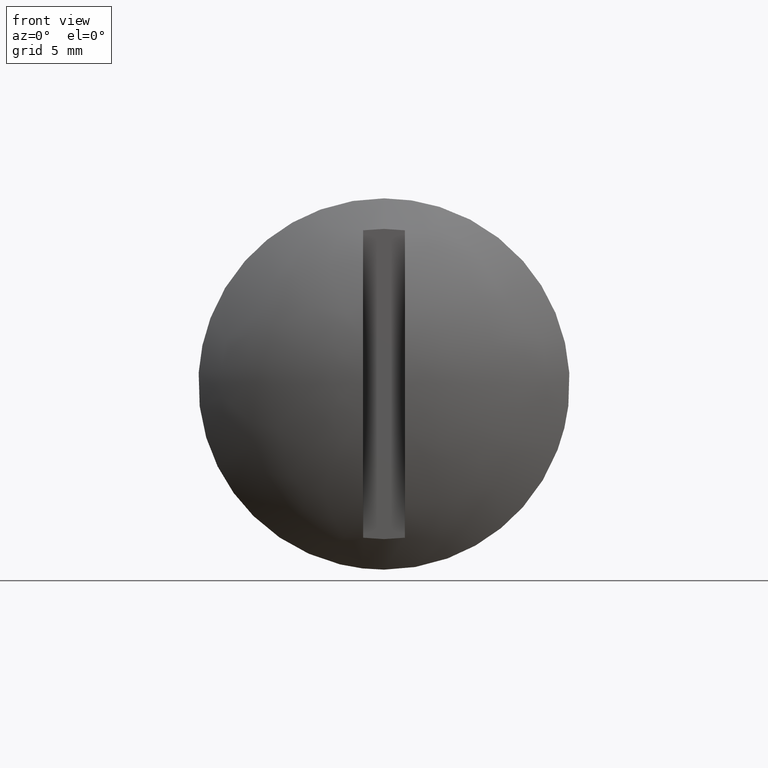
[diagram: clean part render]
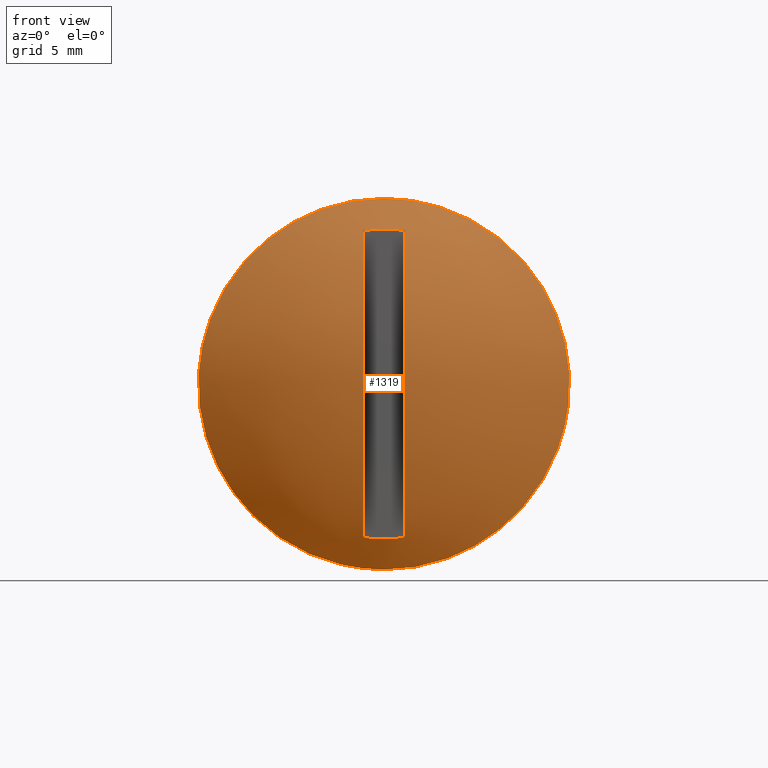
[diagram: same view with one face highlighted and labeled with its STEP entity id]
A machine part, front view. The second image highlights one B-rep face of the part: STEP entity #1319.
In plain terms, the highlighted face is a freeform B-spline surface patch.
Its self-contained STEP definition (entity closure, byte-faithful):
#314=CARTESIAN_POINT('',(-7.985078490479376,-4.600003109090910,0.488386630530298));
#315=VERTEX_POINT('',#314);
#321=CARTESIAN_POINT('',(0.0,-4.600003109090910,8.0));
#322=VERTEX_POINT('',#321);
#323=CARTESIAN_POINT('',(0.0,-4.600003109090910,8.0));
#324=CARTESIAN_POINT('',(-7.525650126971833,-4.600003109090910,8.0));
#325=CARTESIAN_POINT('',(-7.985078490479377,-4.600003109090910,0.488386630530298));
#333=(BOUNDED_CURVE()B_SPLINE_CURVE(2,(#323,#324,#325),.UNSPECIFIED.,.F.,.U.)B_SPLINE_CURVE_WITH_KNOTS((3,3),(0.500000000000000,0.739332998668725),.UNSPECIFIED.)CURVE()GEOMETRIC_REPRESENTATION_ITEM()RATIONAL_B_SPLINE_CURVE((1.0,0.719603950606565,0.976072119742688))REPRESENTATION_ITEM(''));
#334=EDGE_CURVE('',#322,#315,#333,.T.);
#336=CARTESIAN_POINT('',(7.944076343426870,-4.600003109090911,-0.944272762396703));
#337=VERTEX_POINT('',#336);
#338=CARTESIAN_POINT('',(7.944076343426870,-4.600003109090911,-0.944272762396703));
#339=CARTESIAN_POINT('',(8.0,-4.600003109090910,-0.473792393893546));
#340=CARTESIAN_POINT('',(8.0,-4.600003109090910,-7.715016E-016));
#341=CARTESIAN_POINT('',(8.0,-4.600003109090911,8.0));
#342=CARTESIAN_POINT('',(0.0,-4.600003109090910,8.0));
#350=(BOUNDED_CURVE()B_SPLINE_CURVE(2,(#338,#339,#340,#341,#342),.UNSPECIFIED.,.F.,.U.)B_SPLINE_CURVE_WITH_KNOTS((3,2,3),(0.229562497233257,0.250000000000000,0.500000000000000),.UNSPECIFIED.)CURVE()GEOMETRIC_REPRESENTATION_ITEM()RATIONAL_B_SPLINE_CURVE((0.956026800675382,0.976055976120559,1.0,0.707106781186548,1.0))REPRESENTATION_ITEM(''));
#351=EDGE_CURVE('',#337,#322,#350,.T.);
#395=CARTESIAN_POINT('',(0.0,-4.600003109090910,-8.0));
#396=VERTEX_POINT('',#395);
#397=CARTESIAN_POINT('',(0.0,-4.600003109090910,-8.0));
#398=CARTESIAN_POINT('',(7.105397211789190,-4.600003109090910,-8.0));
#399=CARTESIAN_POINT('',(7.944076343426870,-4.600003109090911,-0.944272762396703));
#407=(BOUNDED_CURVE()B_SPLINE_CURVE(2,(#397,#398,#399),.UNSPECIFIED.,.F.,.U.)B_SPLINE_CURVE_WITH_KNOTS((3,3),(0.0,0.229562497233257),.UNSPECIFIED.)CURVE()GEOMETRIC_REPRESENTATION_ITEM()RATIONAL_B_SPLINE_CURVE((1.0,0.731050805065989,0.956026800675382))REPRESENTATION_ITEM(''));
#408=EDGE_CURVE('',#396,#337,#407,.T.);
#410=CARTESIAN_POINT('',(-7.985078490479377,-4.600003109090910,0.488386630530298));
#411=CARTESIAN_POINT('',(-8.0,-4.600003109090910,0.244421261151109));
#412=CARTESIAN_POINT('',(-8.0,-4.600003109090910,-7.715016E-016));
#413=CARTESIAN_POINT('',(-8.0,-4.600003109090911,-8.0));
#414=CARTESIAN_POINT('',(0.0,-4.600003109090910,-8.0));
#422=(BOUNDED_CURVE()B_SPLINE_CURVE(2,(#410,#411,#412,#413,#414),.UNSPECIFIED.,.F.,.U.)B_SPLINE_CURVE_WITH_KNOTS((3,2,3),(0.739332998668725,0.750000000000000,1.0),.UNSPECIFIED.)CURVE()GEOMETRIC_REPRESENTATION_ITEM()RATIONAL_B_SPLINE_CURVE((0.976072119742688,0.987502830579982,1.0,0.707106781186548,1.0))REPRESENTATION_ITEM(''));
#423=EDGE_CURVE('',#315,#396,#422,.T.);
#1146=CARTESIAN_POINT('',(-0.899994000000000,-5.600000000000000,-6.622442132624241));
#1147=VERTEX_POINT('',#1146);
#1148=CARTESIAN_POINT('',(0.900001000000000,-5.600000000000000,-6.622441181316130));
#1149=VERTEX_POINT('',#1148);
#1150=CARTESIAN_POINT('',(-0.899994000000001,-5.600000000000000,-6.622442132624245));
#1151=CARTESIAN_POINT('',(0.000003564641939,-5.600000000000001,-6.744752360780423));
#1152=CARTESIAN_POINT('',(0.900000999999998,-5.600000000000000,-6.622441181316130));
#1160=(BOUNDED_CURVE()B_SPLINE_CURVE(2,(#1150,#1151,#1152),.UNSPECIFIED.,.F.,.U.)CURVE()GEOMETRIC_REPRESENTATION_ITEM()QUASI_UNIFORM_CURVE()RATIONAL_B_SPLINE_CURVE((1.0,0.990891415693262,1.0))REPRESENTATION_ITEM(''));
#1161=EDGE_CURVE('',#1147,#1149,#1160,.T.);
#1163=CARTESIAN_POINT('',(0.900001000000000,-5.600000000000000,6.622441181316130));
#1164=VERTEX_POINT('',#1163);
#1170=CARTESIAN_POINT('',(-0.899994000000000,-5.600000000000000,6.622442132624251));
#1171=VERTEX_POINT('',#1170);
#1172=CARTESIAN_POINT('',(0.900001000000000,-5.600000000000000,6.622441181316132));
#1173=CARTESIAN_POINT('',(0.000003564641941,-5.600000000000000,6.744752360780427));
#1174=CARTESIAN_POINT('',(-0.899993999999998,-5.600000000000000,6.622442132624249));
#1182=(BOUNDED_CURVE()B_SPLINE_CURVE(2,(#1172,#1173,#1174),.UNSPECIFIED.,.F.,.U.)CURVE()GEOMETRIC_REPRESENTATION_ITEM()QUASI_UNIFORM_CURVE()RATIONAL_B_SPLINE_CURVE((1.0,0.990891415693262,1.0))REPRESENTATION_ITEM(''));
#1183=EDGE_CURVE('',#1164,#1171,#1182,.T.);
#1198=CARTESIAN_POINT('',(-0.899994000000000,-5.600000000000006,6.622442132624258));
#1199=CARTESIAN_POINT('',(-0.899994000000000,-9.913778816724628,9.465713E-015));
#1200=CARTESIAN_POINT('',(-0.899994000000000,-5.600000000000015,-6.622442132624243));
#1208=(BOUNDED_CURVE()B_SPLINE_CURVE(2,(#1198,#1199,#1200),.UNSPECIFIED.,.F.,.U.)CURVE()GEOMETRIC_REPRESENTATION_ITEM()QUASI_UNIFORM_CURVE()RATIONAL_B_SPLINE_CURVE((1.0,0.837911814314276,1.0))REPRESENTATION_ITEM(''));
#1209=EDGE_CURVE('',#1171,#1147,#1208,.T.);
#1220=CARTESIAN_POINT('',(0.900001000000000,-5.600000000000009,-6.622441181316141));
#1221=CARTESIAN_POINT('',(0.900001000000000,-9.913777577383495,-1.734678E-016));
#1222=CARTESIAN_POINT('',(0.900001000000000,-5.600000000000013,6.622441181316141));
#1230=(BOUNDED_CURVE()B_SPLINE_CURVE(2,(#1220,#1221,#1222),.UNSPECIFIED.,.F.,.U.)CURVE()GEOMETRIC_REPRESENTATION_ITEM()QUASI_UNIFORM_CURVE()RATIONAL_B_SPLINE_CURVE((1.0,0.837911850171558,1.0))REPRESENTATION_ITEM(''));
#1231=EDGE_CURVE('',#1149,#1164,#1230,.T.);
#1283=CARTESIAN_POINT('',(-7.488466709197089,-1.422579893843460,-7.488632038910354));
#1284=CARTESIAN_POINT('',(-4.288585903265346,-4.062163336550862,-8.577361172579918));
#1285=CARTESIAN_POINT('',(4.288609392507705,-4.062163336550856,-8.577361172579918));
#1286=CARTESIAN_POINT('',(7.488497312371514,-1.422554649175327,-7.488621626431925));
#1287=CARTESIAN_POINT('',(-8.577226869173131,-4.062296836834491,-4.288708118219010));
#1288=CARTESIAN_POINT('',(-5.018182856486771,-7.600003000000000,-5.018293647489132));
#1289=CARTESIAN_POINT('',(5.018210341843483,-7.600002999999994,-5.018293647489132));
#1290=CARTESIAN_POINT('',(8.577260187830277,-4.062263717807743,-4.288701288041056));
#1291=CARTESIAN_POINT('',(-8.577226869173131,-4.062296836834491,4.288708393754412));
#1292=CARTESIAN_POINT('',(-5.018182856486771,-7.600003000000000,5.018293969898006));
#1293=CARTESIAN_POINT('',(5.018210341843483,-7.600002999999994,5.018293969898006));
#1294=CARTESIAN_POINT('',(8.577260187830277,-4.062263717807743,4.288701563576019));
#1295=CARTESIAN_POINT('',(-7.488466587056744,-1.422579597712184,7.488632397887304));
#1296=CARTESIAN_POINT('',(-4.288585823147074,-4.062162948054731,8.577361563407093));
#1297=CARTESIAN_POINT('',(4.288609312388994,-4.062162948054728,8.577361563407093));
#1298=CARTESIAN_POINT('',(7.488497190230841,-1.422554353044874,7.488621985408546));
#1306=(BOUNDED_SURFACE()B_SPLINE_SURFACE(2,2,((#1283,#1287,#1291,#1295),(#1284,#1288,#1292,#1296),(#1285,#1289,#1293,#1297),(#1286,#1290,#1294,#1298)),.UNSPECIFIED.,.F.,.F.,.U.)B_SPLINE_SURFACE_WITH_KNOTS((3,1,3),(3,1,3),(0.0,9.249588578246129,18.499227817906672),(0.0,9.249792789854036,18.499586173976859),.UNSPECIFIED.)GEOMETRIC_REPRESENTATION_ITEM()RATIONAL_B_SPLINE_SURFACE(((1.340243083493611,1.170117785859743,1.170117785859743,1.340243105353594),(1.170125297633868,1.0,1.0,1.170125319493852),(1.170125297633868,1.0,1.0,1.170125319493852),(1.340244947021092,1.170119649387223,1.170119649387223,1.340244968881075)))REPRESENTATION_ITEM('')SURFACE());
#1307=ORIENTED_EDGE('',*,*,#408,.T.);
#1308=ORIENTED_EDGE('',*,*,#351,.T.);
#1309=ORIENTED_EDGE('',*,*,#334,.T.);
#1310=ORIENTED_EDGE('',*,*,#423,.T.);
#1311=EDGE_LOOP('',(#1307,#1308,#1309,#1310));
#1312=FACE_OUTER_BOUND('',#1311,.T.);
#1313=ORIENTED_EDGE('',*,*,#1161,.F.);
#1314=ORIENTED_EDGE('',*,*,#1209,.F.);
#1315=ORIENTED_EDGE('',*,*,#1183,.F.);
#1316=ORIENTED_EDGE('',*,*,#1231,.F.);
#1317=EDGE_LOOP('',(#1313,#1314,#1315,#1316));
#1318=FACE_BOUND('',#1317,.T.);
#1319=ADVANCED_FACE('',(#1312,#1318),#1306,.T.);